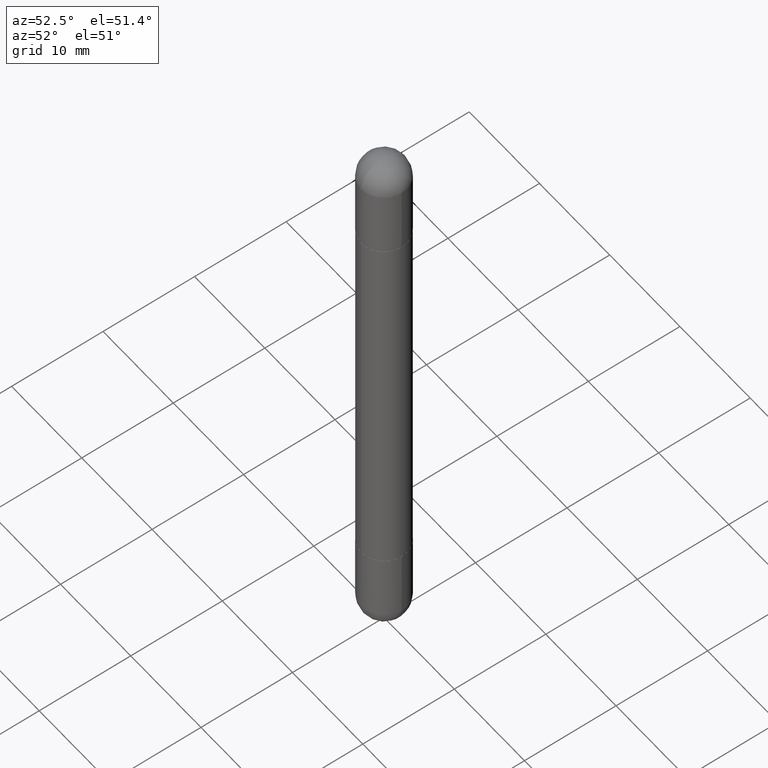
[diagram: clean part render]
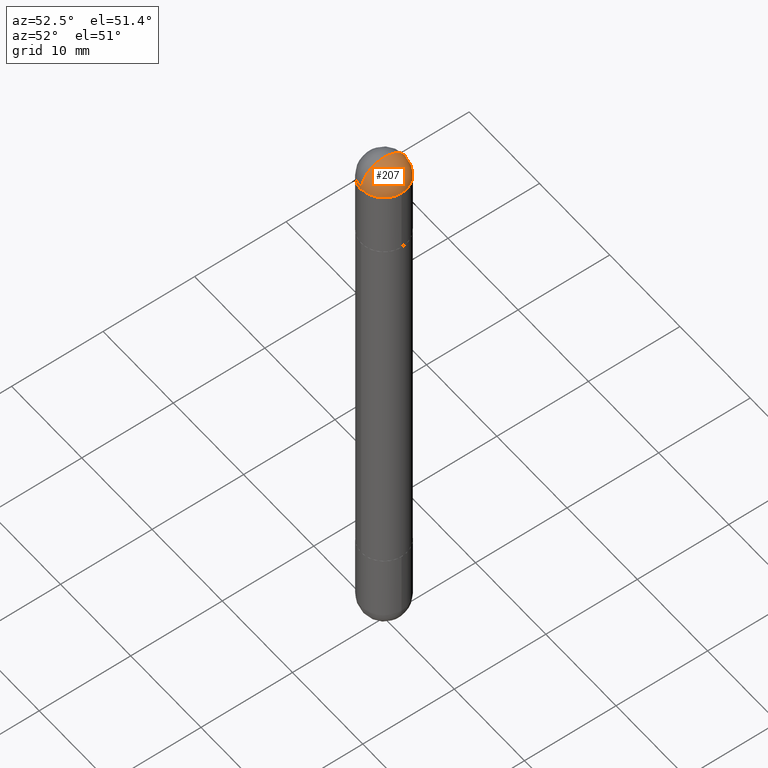
[diagram: same view with one face highlighted and labeled with its STEP entity id]
A machine part, auxiliary view. The second image highlights one B-rep face of the part: STEP entity #207.
In plain terms, the highlighted spherical surface has radius 2.5006 mm.
Its self-contained STEP definition (entity closure, byte-faithful):
#68 = ORIENTED_EDGE ( 'NONE', *, *, #164, .T. ) ;
#75 = AXIS2_PLACEMENT_3D ( 'NONE', #512, #771, #518 ) ;
#97 = VERTEX_POINT ( 'NONE', #505 ) ;
#105 = CIRCLE ( 'NONE', #610, 0.09845000000000000973 ) ;
#132 = EDGE_LOOP ( 'NONE', ( #726, #197, #281, #68 ) ) ;
#164 = EDGE_CURVE ( 'NONE', #486, #97, #556, .T. ) ;
#179 = CARTESIAN_POINT ( 'NONE',  ( 5.824739876012068780E-29, -8.316184826923546689E-15, -0.09844999999999987095 ) ) ;
#197 = ORIENTED_EDGE ( 'NONE', *, *, #532, .T. ) ;
#198 = CARTESIAN_POINT ( 'NONE',  ( 5.738586058125595532E-29, -9.128075209003904434E-15, 3.073328992872296367E-16 ) ) ;
#207 = ADVANCED_FACE ( 'NONE', ( #271 ), #338, .T. ) ;
#211 = AXIS2_PLACEMENT_3D ( 'NONE', #676, #307, #739 ) ;
#227 = DIRECTION ( 'NONE',  ( 2.445468806185136597E-29, -3.491481338843145583E-15, 1.000000000000000000 ) ) ;
#271 = FACE_OUTER_BOUND ( 'NONE', #132, .T. ) ;
#277 = AXIS2_PLACEMENT_3D ( 'NONE', #396, #467, #348 ) ;
#281 = ORIENTED_EDGE ( 'NONE', *, *, #545, .T. ) ;
#282 = EDGE_CURVE ( 'NONE', #472, #97, #439, .T. ) ;
#303 = VERTEX_POINT ( 'NONE', #543 ) ;
#307 = DIRECTION ( 'NONE',  ( -1.000000000000000000, 6.982962677686265922E-15, 4.883557194083112340E-29 ) ) ;
#319 = CARTESIAN_POINT ( 'NONE',  ( 0.09845000000000000973, -8.488227569895042768E-15, -0.09844999999999987095 ) ) ;
#338 = SPHERICAL_SURFACE ( 'NONE', #75, 0.09845000000000017626 ) ;
#344 = CIRCLE ( 'NONE', #627, 0.09845000000000017626 ) ;
#348 = DIRECTION ( 'NONE',  ( 1.000000000000000000, -6.982962677686273810E-15, 0.000000000000000000 ) ) ;
#396 = CARTESIAN_POINT ( 'NONE',  ( 5.824739876012068780E-29, -8.316184826923546689E-15, -0.09844999999999987095 ) ) ;
#439 = CIRCLE ( 'NONE', #211, 0.09845000000000017626 ) ;
#467 = DIRECTION ( 'NONE',  ( 2.445468806185136597E-29, -3.491481338843145583E-15, 1.000000000000000000 ) ) ;
#472 = VERTEX_POINT ( 'NONE', #198 ) ;
#473 = DIRECTION ( 'NONE',  ( 1.000000000000000000, -6.982962677686273810E-15, 0.000000000000000000 ) ) ;
#486 = VERTEX_POINT ( 'NONE', #319 ) ;
#505 = CARTESIAN_POINT ( 'NONE',  ( 6.874726756182700483E-16, 0.09844999999999154427, -0.09844999999999953788 ) ) ;
#512 = CARTESIAN_POINT ( 'NONE',  ( 5.493620098098182533E-29, -8.790367195063598563E-15, -0.09844999999999987095 ) ) ;
#518 = DIRECTION ( 'NONE',  ( 6.982962677686265922E-15, 1.000000000000000000, 3.468572871589967054E-15 ) ) ;
#532 = EDGE_CURVE ( 'NONE', #472, #303, #344, .T. ) ;
#537 = CARTESIAN_POINT ( 'NONE',  ( 5.493620098098182533E-29, -8.790367195063598563E-15, -0.09844999999999987095 ) ) ;
#543 = CARTESIAN_POINT ( 'NONE',  ( -6.754160278805513950E-16, -0.09845000000000865559, -0.09845000000000021789 ) ) ;
#545 = EDGE_CURVE ( 'NONE', #303, #486, #105, .T. ) ;
#556 = CIRCLE ( 'NONE', #277, 0.09845000000000000973 ) ;
#610 = AXIS2_PLACEMENT_3D ( 'NONE', #179, #227, #473 ) ;
#627 = AXIS2_PLACEMENT_3D ( 'NONE', #537, #791, #794 ) ;
#676 = CARTESIAN_POINT ( 'NONE',  ( 5.493620098098182533E-29, -8.790367195063598563E-15, -0.09844999999999987095 ) ) ;
#726 = ORIENTED_EDGE ( 'NONE', *, *, #282, .F. ) ;
#739 = DIRECTION ( 'NONE',  ( -6.982962677686265922E-15, -1.000000000000000000, 0.000000000000000000 ) ) ;
#771 = DIRECTION ( 'NONE',  ( 1.000000000000000000, -6.982962677686265922E-15, -4.883557194083112901E-29 ) ) ;
#791 = DIRECTION ( 'NONE',  ( 1.000000000000000000, -6.860497997771530774E-15, -4.840798879624142912E-29 ) ) ;
#794 = DIRECTION ( 'NONE',  ( 6.860497997771531562E-15, 1.000000000000000000, 0.000000000000000000 ) ) ;